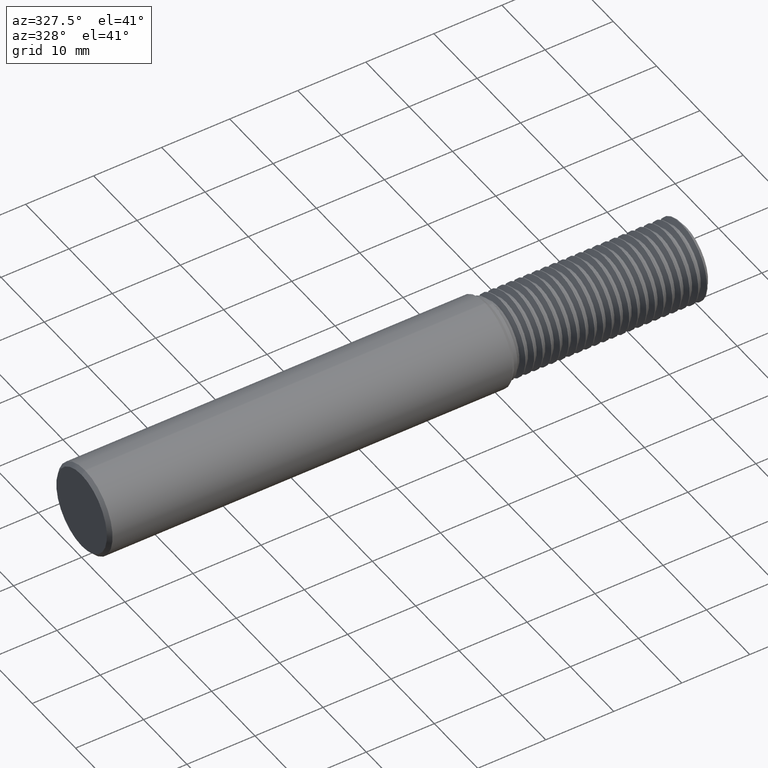
[diagram: clean part render]
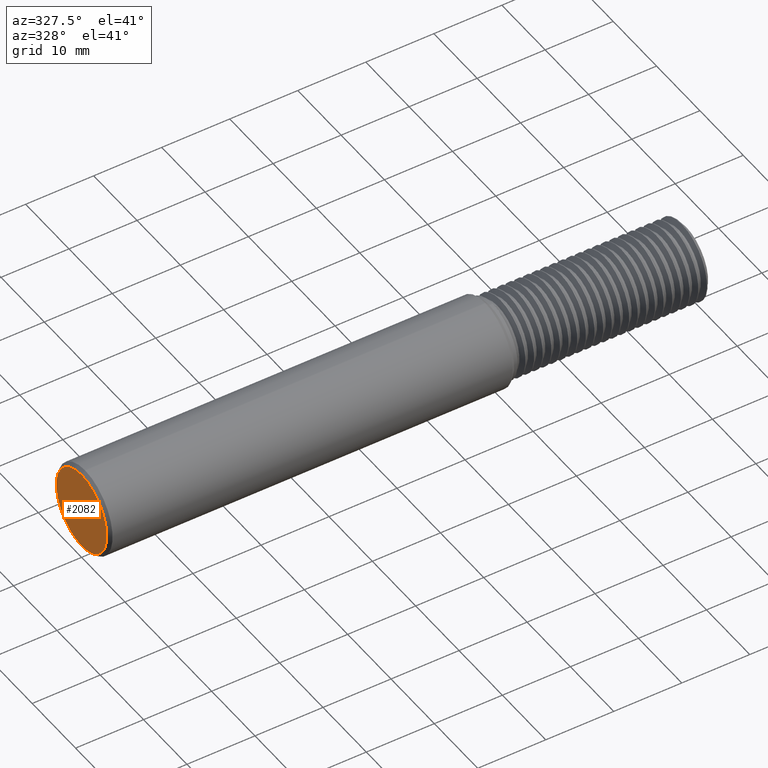
[diagram: same view with one face highlighted and labeled with its STEP entity id]
A machine part, auxiliary view. The second image highlights one B-rep face of the part: STEP entity #2082.
In plain terms, the highlighted planar face has unit normal (1, 0, 0).
Its self-contained STEP definition (entity closure, byte-faithful):
#180 = AXIS2_PLACEMENT_3D ( 'NONE', #3161, #4434, #2097 ) ;
#272 = CIRCLE ( 'NONE', #1916, 0.2298500000000002763 ) ;
#597 = PLANE ( 'NONE',  #180 ) ;
#1382 = ORIENTED_EDGE ( 'NONE', *, *, #4329, .T. ) ;
#1513 = EDGE_LOOP ( 'NONE', ( #1382, #3654 ) ) ;
#1637 = CIRCLE ( 'NONE', #1808, 0.2298500000000002763 ) ;
#1753 = CARTESIAN_POINT ( 'NONE',  ( 0.000000000000000000, 2.937315347754928730E-17, 0.2298500000000002763 ) ) ;
#1808 = AXIS2_PLACEMENT_3D ( 'NONE', #4826, #4446, #3264 ) ;
#1916 = AXIS2_PLACEMENT_3D ( 'NONE', #2119, #2946, #4040 ) ;
#2082 = ADVANCED_FACE ( 'NONE', ( #4318 ), #597, .F. ) ;
#2097 = DIRECTION ( 'NONE',  ( 0.000000000000000000, 0.000000000000000000, -1.000000000000000000 ) ) ;
#2119 = CARTESIAN_POINT ( 'NONE',  ( 0.000000000000000000, 0.000000000000000000, 0.000000000000000000 ) ) ;
#2860 = CARTESIAN_POINT ( 'NONE',  ( 0.000000000000000000, 0.000000000000000000, -0.2298500000000002763 ) ) ;
#2869 = EDGE_CURVE ( 'NONE', #3107, #3991, #272, .T. ) ;
#2946 = DIRECTION ( 'NONE',  ( -1.000000000000000000, -0.000000000000000000, -0.000000000000000000 ) ) ;
#3107 = VERTEX_POINT ( 'NONE', #1753 ) ;
#3161 = CARTESIAN_POINT ( 'NONE',  ( 0.000000000000000000, 0.000000000000000000, 0.000000000000000000 ) ) ;
#3264 = DIRECTION ( 'NONE',  ( 0.000000000000000000, 0.000000000000000000, -1.000000000000000000 ) ) ;
#3654 = ORIENTED_EDGE ( 'NONE', *, *, #2869, .T. ) ;
#3991 = VERTEX_POINT ( 'NONE', #2860 ) ;
#4040 = DIRECTION ( 'NONE',  ( 0.000000000000000000, 0.000000000000000000, -1.000000000000000000 ) ) ;
#4318 = FACE_OUTER_BOUND ( 'NONE', #1513, .T. ) ;
#4329 = EDGE_CURVE ( 'NONE', #3991, #3107, #1637, .T. ) ;
#4434 = DIRECTION ( 'NONE',  ( 1.000000000000000000, 0.000000000000000000, 0.000000000000000000 ) ) ;
#4446 = DIRECTION ( 'NONE',  ( -1.000000000000000000, -0.000000000000000000, -0.000000000000000000 ) ) ;
#4826 = CARTESIAN_POINT ( 'NONE',  ( 0.000000000000000000, 0.000000000000000000, 0.000000000000000000 ) ) ;